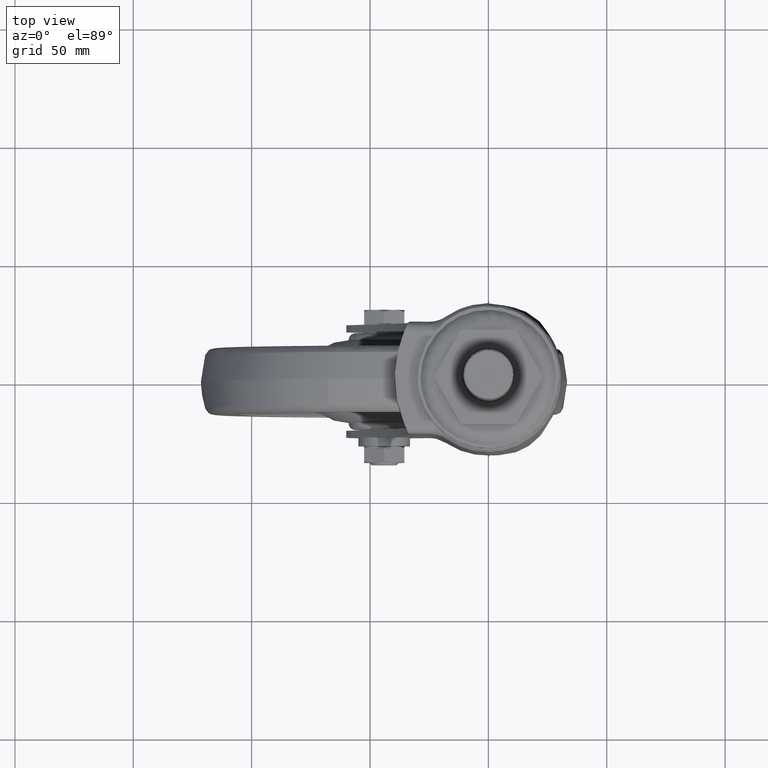
[diagram: clean part render]
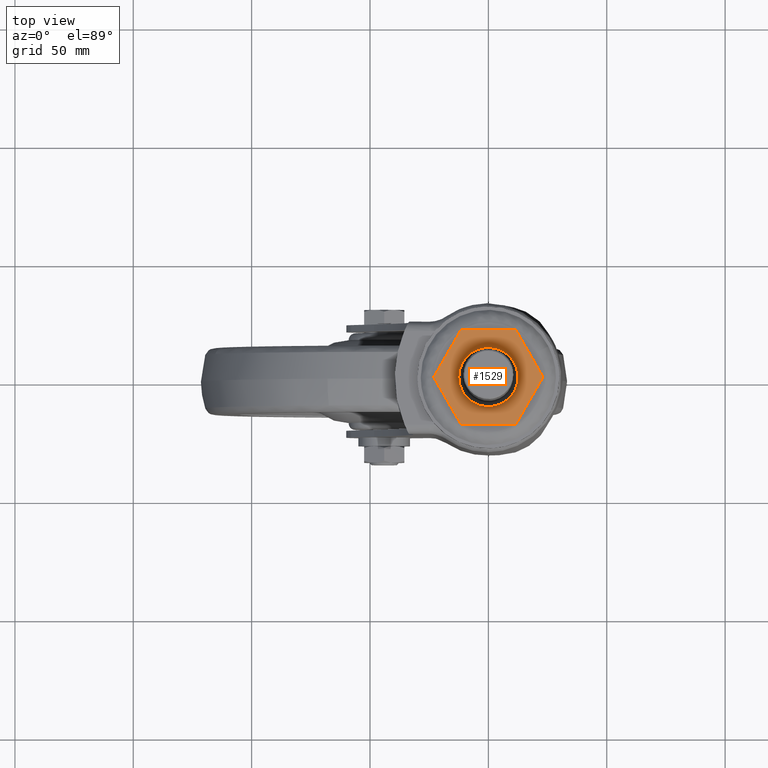
[diagram: same view with one face highlighted and labeled with its STEP entity id]
A machine part, top view. The second image highlights one B-rep face of the part: STEP entity #1529.
In plain terms, the highlighted face is a freeform B-spline surface patch.
Its self-contained STEP definition (entity closure, byte-faithful):
#1216=CARTESIAN_POINT('',(-12.499999991589640,2.752257E-014,4.899999999999920));
#1217=VERTEX_POINT('',#1216);
#1233=CARTESIAN_POINT('',(12.499999991589640,2.847873E-014,4.899999999999920));
#1234=VERTEX_POINT('',#1233);
#1248=CARTESIAN_POINT('',(-12.499999991589640,2.752257E-014,4.899999999999920));
#1249=CARTESIAN_POINT('',(-12.500396064954121,1.124929211081824,4.899999999999923));
#1250=CARTESIAN_POINT('',(-12.228908045340210,3.118890622928705,4.899999999999916));
#1251=CARTESIAN_POINT('',(-11.213901234957220,5.702904968200762,4.899999999999930));
#1252=CARTESIAN_POINT('',(-9.965579082897472,7.647461755972409,4.899999999999912));
#1253=CARTESIAN_POINT('',(-8.231716315322997,9.537580043349127,4.899999999999922));
#1254=CARTESIAN_POINT('',(-6.206743934710890,10.963545994168051,4.899999999999899));
#1255=CARTESIAN_POINT('',(-3.512237148826038,12.099136183518850,4.900000000000001));
#1256=CARTESIAN_POINT('',(-0.925280871718946,12.580813286826320,4.899999999999769));
#1257=CARTESIAN_POINT('',(1.845925311550239,12.444375434691000,4.900000000000031));
#1258=CARTESIAN_POINT('',(4.487487498208032,11.782949213871611,4.899999999999898));
#1259=CARTESIAN_POINT('',(6.874862216659503,10.562899985543320,4.899999999999775));
#1260=CARTESIAN_POINT('',(8.730874654176594,9.020115417373113,4.900000000000029));
#1261=CARTESIAN_POINT('',(10.045638521327319,7.514680680573967,4.899999999999806));
#1262=CARTESIAN_POINT('',(11.265095220715690,5.615404118439034,4.900000000000021));
#1263=CARTESIAN_POINT('',(12.247642310559581,3.067863212086199,4.899999999999807));
#1264=CARTESIAN_POINT('',(12.500230320546480,1.022664321840815,4.900000000000044));
#1265=CARTESIAN_POINT('',(12.499999991589640,2.847873E-014,4.899999999999920));
#1266=B_SPLINE_CURVE_WITH_KNOTS('',3,(#1248,#1249,#1250,#1251,#1252,#1253,#1254,#1255,#1256,#1257,#1258,#1259,#1260,#1261,#1262,#1263,#1264,#1265),.UNSPECIFIED.,.F.,.U.,(4,1,1,1,1,1,1,1,1,1,1,1,1,1,1,4),(0.000000932330110,3.374693421331955,5.982551400526596,8.283518908195358,10.277754385042460,13.652613982638449,15.646737295816470,19.021545591383319,21.475705317299319,23.930248301213570,27.151583718435941,29.452618697988228,31.140047287796580,33.134235962988292,36.202193431152708,39.270154558948221),.UNSPECIFIED.);
#1267=EDGE_CURVE('',#1217,#1234,#1266,.T.);
#1296=CARTESIAN_POINT('',(12.499999991589640,2.847873E-014,4.899999999999920));
#1297=CARTESIAN_POINT('',(12.500673235134190,-1.278408842515937,4.899999999999928));
#1298=CARTESIAN_POINT('',(12.191248627702910,-3.272103248402851,4.899999999999916));
#1299=CARTESIAN_POINT('',(11.071746035942850,-5.974827774859318,4.899999999999927));
#1300=CARTESIAN_POINT('',(9.728419547568553,-7.985258655413887,4.899999999999915));
#1301=CARTESIAN_POINT('',(7.901754053963083,-9.789574791719408,4.899999999999911));
#1302=CARTESIAN_POINT('',(5.712805115667210,-11.233016357321359,4.900000000000036));
#1303=CARTESIAN_POINT('',(3.305524357914051,-12.144567568661870,4.899999999999701));
#1304=CARTESIAN_POINT('',(0.873405953436669,-12.535785234971700,4.900000000000224));
#1305=CARTESIAN_POINT('',(-1.128847804377313,-12.498885572627620,4.899999999999743));
#1306=CARTESIAN_POINT('',(-3.248753169366792,-12.131108199464901,4.899999999999922));
#1307=CARTESIAN_POINT('',(-5.189231673199603,-11.450242030093730,4.899999999999986));
#1308=CARTESIAN_POINT('',(-7.413124048609493,-10.172399216393471,4.899999999999804));
#1309=CARTESIAN_POINT('',(-9.188514809866234,-8.602679526841628,4.899999999999992));
#1310=CARTESIAN_POINT('',(-10.574727021089270,-6.756838902510321,4.899999999999865));
#1311=CARTESIAN_POINT('',(-11.614179434947900,-4.812520354873736,4.899999999999857));
#1312=CARTESIAN_POINT('',(-12.328822705149710,-2.556564161307980,4.900000000000357));
#1313=CARTESIAN_POINT('',(-12.500082772752910,-0.818078028606116,4.899999999999159));
#1314=CARTESIAN_POINT('',(-12.499999991589640,2.752257E-014,4.899999999999920));
#1315=B_SPLINE_CURVE_WITH_KNOTS('',3,(#1296,#1297,#1298,#1299,#1300,#1301,#1302,#1303,#1304,#1305,#1306,#1307,#1308,#1309,#1310,#1311,#1312,#1313,#1314),.UNSPECIFIED.,.F.,.U.,(4,1,1,1,1,1,1,1,1,1,1,1,1,1,1,1,4),(0.000000932382477,3.834938145340402,5.982551400569783,8.743730705970499,11.044763320900850,13.652613982670340,16.567129095723139,18.714843574400788,21.015513540833741,22.549598957440871,25.157401081784059,27.151583718449881,30.219622870667461,32.213819689380323,34.054674429619482,36.815905622252721,39.270154558948022),.UNSPECIFIED.);
#1316=EDGE_CURVE('',#1234,#1217,#1315,.T.);
#1385=CARTESIAN_POINT('',(-11.547327000000100,-20.0,4.899999999999900));
#1386=VERTEX_POINT('',#1385);
#1387=CARTESIAN_POINT('',(-23.094332000000001,0.0,4.899999999999900));
#1388=VERTEX_POINT('',#1387);
#1389=CARTESIAN_POINT('',(-11.547327000000100,-20.0,4.899999999999900));
#1390=CARTESIAN_POINT('',(-23.094332000000001,0.0,4.899999999999900));
#1391=QUASI_UNIFORM_CURVE('',1,(#1389,#1390),.UNSPECIFIED.,.F.,.U.);
#1392=EDGE_CURVE('',#1386,#1388,#1391,.T.);
#1413=CARTESIAN_POINT('',(11.546683999999960,-20.0,4.899999999999900));
#1414=VERTEX_POINT('',#1413);
#1415=CARTESIAN_POINT('',(11.546683999999960,-20.0,4.899999999999900));
#1416=CARTESIAN_POINT('',(-11.547327000000100,-20.0,4.899999999999900));
#1417=QUASI_UNIFORM_CURVE('',1,(#1415,#1416),.UNSPECIFIED.,.F.,.U.);
#1418=EDGE_CURVE('',#1414,#1386,#1417,.T.);
#1435=CARTESIAN_POINT('',(23.093689000000101,0.0,4.899999999999900));
#1436=VERTEX_POINT('',#1435);
#1437=CARTESIAN_POINT('',(23.093689000000101,0.0,4.899999999999900));
#1438=CARTESIAN_POINT('',(11.546683999999960,-20.0,4.899999999999900));
#1439=QUASI_UNIFORM_CURVE('',1,(#1437,#1438),.UNSPECIFIED.,.F.,.U.);
#1440=EDGE_CURVE('',#1436,#1414,#1439,.T.);
#1457=CARTESIAN_POINT('',(11.546683999999960,20.0,4.899999999999900));
#1458=VERTEX_POINT('',#1457);
#1459=CARTESIAN_POINT('',(11.546683999999960,20.0,4.899999999999900));
#1460=CARTESIAN_POINT('',(23.093689000000101,0.0,4.899999999999900));
#1461=QUASI_UNIFORM_CURVE('',1,(#1459,#1460),.UNSPECIFIED.,.F.,.U.);
#1462=EDGE_CURVE('',#1458,#1436,#1461,.T.);
#1479=CARTESIAN_POINT('',(-11.547327000000100,20.0,4.899999999999900));
#1480=VERTEX_POINT('',#1479);
#1481=CARTESIAN_POINT('',(-11.547327000000100,20.0,4.899999999999900));
#1482=CARTESIAN_POINT('',(11.546683999999960,20.0,4.899999999999900));
#1483=QUASI_UNIFORM_CURVE('',1,(#1481,#1482),.UNSPECIFIED.,.F.,.U.);
#1484=EDGE_CURVE('',#1480,#1458,#1483,.T.);
#1501=CARTESIAN_POINT('',(-23.094332000000001,0.0,4.899999999999900));
#1502=CARTESIAN_POINT('',(-11.547327000000100,20.0,4.899999999999900));
#1503=QUASI_UNIFORM_CURVE('',1,(#1501,#1502),.UNSPECIFIED.,.F.,.U.);
#1504=EDGE_CURVE('',#1388,#1480,#1503,.T.);
#1512=CARTESIAN_POINT('',(25.400780559428760,-21.997999922472239,4.899999999999920));
#1513=CARTESIAN_POINT('',(-25.401424798287920,-21.997999922472239,4.899999999999920));
#1514=CARTESIAN_POINT('',(25.400780559428760,21.998000995355842,4.899999999999920));
#1515=CARTESIAN_POINT('',(-25.401424798287920,21.998000995355842,4.899999999999920));
#1516=B_SPLINE_SURFACE_WITH_KNOTS('',1,1,((#1512,#1514),(#1513,#1515)),.UNSPECIFIED.,.F.,.F.,.U.,(2,2),(2,2),(0.0,50.802205357716680),(0.0,43.996000917828077),.UNSPECIFIED.);
#1517=ORIENTED_EDGE('',*,*,#1504,.F.);
#1518=ORIENTED_EDGE('',*,*,#1392,.F.);
#1519=ORIENTED_EDGE('',*,*,#1418,.F.);
#1520=ORIENTED_EDGE('',*,*,#1440,.F.);
#1521=ORIENTED_EDGE('',*,*,#1462,.F.);
#1522=ORIENTED_EDGE('',*,*,#1484,.F.);
#1523=EDGE_LOOP('',(#1517,#1518,#1519,#1520,#1521,#1522));
#1524=FACE_OUTER_BOUND('',#1523,.T.);
#1525=ORIENTED_EDGE('',*,*,#1267,.T.);
#1526=ORIENTED_EDGE('',*,*,#1316,.T.);
#1527=EDGE_LOOP('',(#1525,#1526));
#1528=FACE_BOUND('',#1527,.T.);
#1529=ADVANCED_FACE('',(#1524,#1528),#1516,.F.);